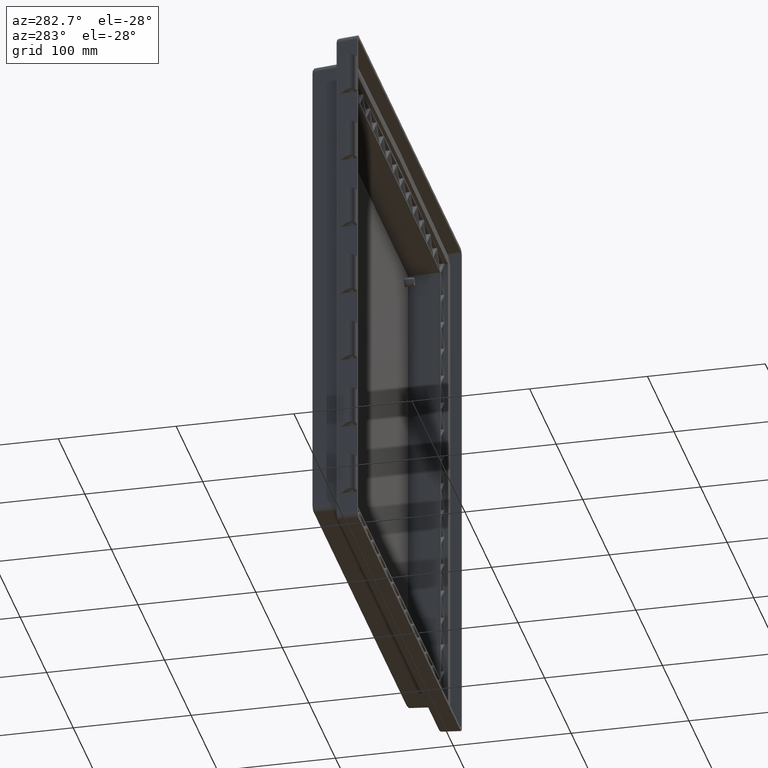
[diagram: clean part render]
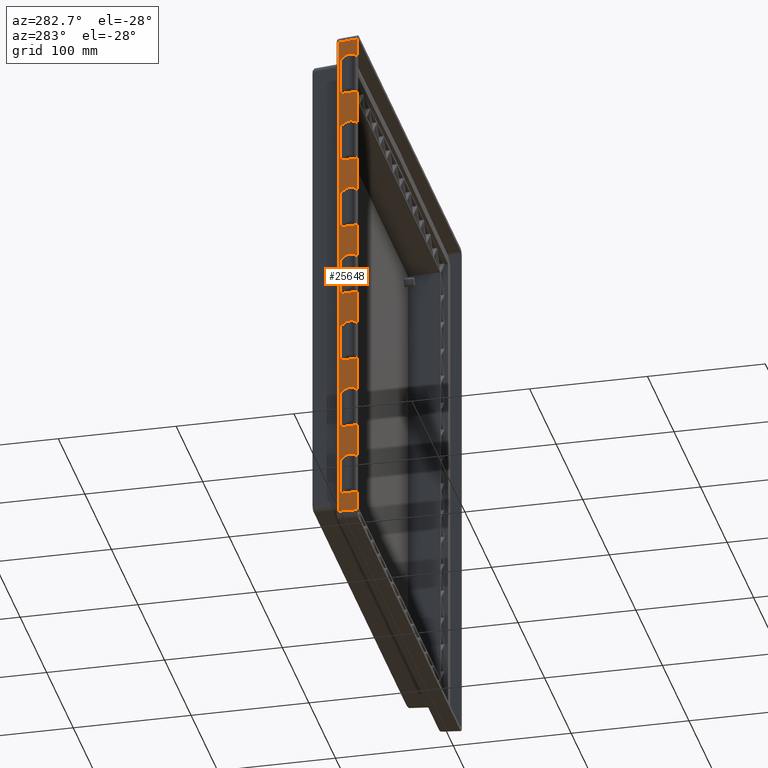
[diagram: same view with one face highlighted and labeled with its STEP entity id]
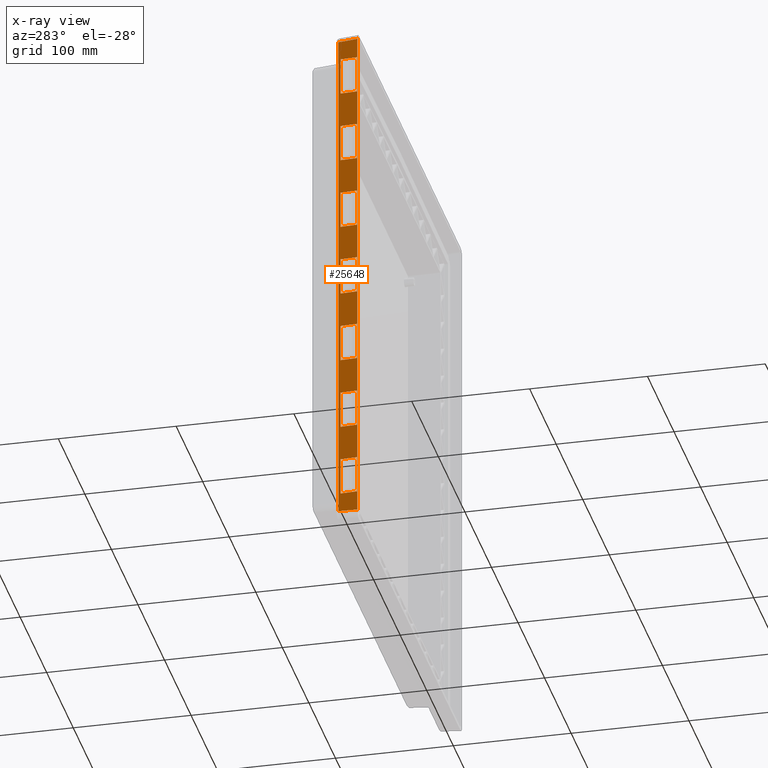
[diagram: x-ray of the same camera — body ghosted, the highlighted face saturated]
A machine part, auxiliary view. The second image highlights one B-rep face of the part: STEP entity #25648.
The next image is the same camera in x-ray: the body ghosted, the highlighted face saturated — about 0% of this face is hidden behind the body in this view.
In plain terms, the highlighted planar face has unit normal (-0.9986, 0.0523, 0).
Its self-contained STEP definition (entity closure, byte-faithful):
#2567 = CARTESIAN_POINT ( 'NONE',  ( -196.9040579168183700, -7.709884340566621800, -141.0000000000000000 ) ) ;
#3216 = CARTESIAN_POINT ( 'NONE',  ( -196.9040579168183700, -7.709884340566621800, -109.0000000000000100 ) ) ;
#8567 = DIRECTION ( 'NONE',  ( -0.0000000000000000000, -0.0000000000000000000, -1.000000000000000000 ) ) ;
#8568 = VECTOR ( 'NONE', #8567, 1000.000000000000000 ) ;
#8571 = CARTESIAN_POINT ( 'NONE',  ( -196.9040579168183700, -7.709884340566616400, -109.0000000000000100 ) ) ;
#8573 = LINE ( 'NONE', #8571, #8568 ) ;
#10353 = VERTEX_POINT ( 'NONE', #28763 ) ;
#10362 = EDGE_CURVE ( 'NONE', #17717, #10353, #28754, .T. ) ;
#11200 = CARTESIAN_POINT ( 'NONE',  ( -196.9040579168183700, -7.709884340566621800, -46.50000000000000000 ) ) ;
#11269 = CARTESIAN_POINT ( 'NONE',  ( -196.9040579168183700, -7.709884340566621800, -78.50000000000000000 ) ) ;
#11336 = DIRECTION ( 'NONE',  ( -0.0000000000000000000, -0.0000000000000000000, -1.000000000000000000 ) ) ;
#11337 = VECTOR ( 'NONE', #11336, 1000.000000000000000 ) ;
#11338 = CARTESIAN_POINT ( 'NONE',  ( -196.9040579168183700, -7.709884340566616400, -46.50000000000000000 ) ) ;
#11339 = LINE ( 'NONE', #11338, #11337 ) ;
#13537 = CARTESIAN_POINT ( 'NONE',  ( -196.5000000000001700, 0.0000000000000000000, 16.00000000000001400 ) ) ;
#13803 = DIRECTION ( 'NONE',  ( -0.05233595624294396000, -0.9986295347545739400, 0.0000000000000000000 ) ) ;
#13804 = VECTOR ( 'NONE', #13803, 1000.000000000000000 ) ;
#13814 = CARTESIAN_POINT ( 'NONE',  ( -196.1611324283967700, 6.465978452802646700, -16.00000000000000000 ) ) ;
#14388 = CARTESIAN_POINT ( 'NONE',  ( -196.1611324283967700, 6.465978452802646700, -203.5000000000000000 ) ) ;
#14395 = DIRECTION ( 'NONE',  ( -0.05233595624294396000, -0.9986295347545739400, 0.0000000000000000000 ) ) ;
#14396 = VECTOR ( 'NONE', #14395, 1000.000000000000000 ) ;
#14397 = CARTESIAN_POINT ( 'NONE',  ( -196.5000000000001700, 0.0000000000000000000, -171.5000000000000000 ) ) ;
#14398 = LINE ( 'NONE', #14397, #14396 ) ;
#14399 = DIRECTION ( 'NONE',  ( -0.05233595624294396000, -0.9986295347545739400, 0.0000000000000000000 ) ) ;
#14400 = VECTOR ( 'NONE', #14399, 1000.000000000000000 ) ;
#14401 = CARTESIAN_POINT ( 'NONE',  ( -196.5000000000001700, 0.0000000000000000000, -171.5000000000000000 ) ) ;
#14402 = LINE ( 'NONE', #14401, #14400 ) ;
#14403 = DIRECTION ( 'NONE',  ( -0.05233595624294396000, -0.9986295347545739400, 0.0000000000000000000 ) ) ;
#14404 = VECTOR ( 'NONE', #14403, 1000.000000000000000 ) ;
#14405 = CARTESIAN_POINT ( 'NONE',  ( -196.5000000000001700, 0.0000000000000000000, -203.5000000000000000 ) ) ;
#14410 = LINE ( 'NONE', #14405, #14404 ) ;
#14425 = CARTESIAN_POINT ( 'NONE',  ( -196.1611324283968000, 6.465978452802630700, -171.5000000000000000 ) ) ;
#14467 = CARTESIAN_POINT ( 'NONE',  ( -196.1611324283967700, 6.465978452802646700, -141.0000000000000000 ) ) ;
#14468 = DIRECTION ( 'NONE',  ( -0.0000000000000000000, -0.0000000000000000000, -1.000000000000000000 ) ) ;
#14469 = VECTOR ( 'NONE', #14468, 1000.000000000000000 ) ;
#14470 = CARTESIAN_POINT ( 'NONE',  ( -196.1611324283967700, 6.465978452802646700, -109.0000000000000100 ) ) ;
#14471 = LINE ( 'NONE', #14470, #14469 ) ;
#14484 = LINE ( 'NONE', #14544, #14543 ) ;
#14497 = DIRECTION ( 'NONE',  ( -0.05233595624294396000, -0.9986295347545739400, 0.0000000000000000000 ) ) ;
#14498 = VECTOR ( 'NONE', #14497, 1000.000000000000000 ) ;
#14499 = CARTESIAN_POINT ( 'NONE',  ( -196.5000000000001700, 0.0000000000000000000, -203.5000000000000000 ) ) ;
#14500 = LINE ( 'NONE', #14499, #14498 ) ;
#14505 = CARTESIAN_POINT ( 'NONE',  ( -196.1611324283968000, 6.465978452802630700, -108.9999999999999900 ) ) ;
#14506 = DIRECTION ( 'NONE',  ( -0.05233595624294396000, -0.9986295347545739400, 0.0000000000000000000 ) ) ;
#14507 = VECTOR ( 'NONE', #14506, 1000.000000000000000 ) ;
#14508 = CARTESIAN_POINT ( 'NONE',  ( -196.5000000000001700, 0.0000000000000000000, -108.9999999999999900 ) ) ;
#14509 = LINE ( 'NONE', #14508, #14507 ) ;
#14525 = DIRECTION ( 'NONE',  ( -0.05233595624294396000, -0.9986295347545739400, 0.0000000000000000000 ) ) ;
#14526 = VECTOR ( 'NONE', #14525, 1000.000000000000000 ) ;
#14527 = CARTESIAN_POINT ( 'NONE',  ( -196.5000000000001700, 0.0000000000000000000, -46.49999999999998600 ) ) ;
#14528 = LINE ( 'NONE', #14527, #14526 ) ;
#14533 = CARTESIAN_POINT ( 'NONE',  ( -196.1611324283968000, 6.465978452802630700, -46.49999999999998600 ) ) ;
#14534 = DIRECTION ( 'NONE',  ( -0.05233595624294396000, -0.9986295347545739400, 0.0000000000000000000 ) ) ;
#14535 = VECTOR ( 'NONE', #14534, 1000.000000000000000 ) ;
#14536 = CARTESIAN_POINT ( 'NONE',  ( -196.5000000000001700, 0.0000000000000000000, -46.49999999999998600 ) ) ;
#14537 = LINE ( 'NONE', #14536, #14535 ) ;
#14542 = DIRECTION ( 'NONE',  ( -0.0000000000000000000, -0.0000000000000000000, -1.000000000000000000 ) ) ;
#14543 = VECTOR ( 'NONE', #14542, 1000.000000000000000 ) ;
#14544 = CARTESIAN_POINT ( 'NONE',  ( -196.1611324283967700, 6.465978452802646700, -171.5000000000000000 ) ) ;
#14545 = DIRECTION ( 'NONE',  ( -0.05233595624294396000, -0.9986295347545739400, 0.0000000000000000000 ) ) ;
#14546 = VECTOR ( 'NONE', #14545, 1000.000000000000000 ) ;
#14547 = CARTESIAN_POINT ( 'NONE',  ( -196.5000000000001700, 0.0000000000000000000, -141.0000000000000000 ) ) ;
#14548 = LINE ( 'NONE', #14547, #14546 ) ;
#14549 = DIRECTION ( 'NONE',  ( -0.05233595624294396000, -0.9986295347545739400, 0.0000000000000000000 ) ) ;
#14550 = VECTOR ( 'NONE', #14549, 1000.000000000000000 ) ;
#14551 = CARTESIAN_POINT ( 'NONE',  ( -196.5000000000001700, 0.0000000000000000000, -141.0000000000000000 ) ) ;
#14555 = LINE ( 'NONE', #14551, #14550 ) ;
#14604 = DIRECTION ( 'NONE',  ( -0.05233595624294396000, -0.9986295347545739400, 0.0000000000000000000 ) ) ;
#14605 = VECTOR ( 'NONE', #14604, 1000.000000000000000 ) ;
#14606 = CARTESIAN_POINT ( 'NONE',  ( -196.5000000000001700, 0.0000000000000000000, -108.9999999999999900 ) ) ;
#14607 = LINE ( 'NONE', #14606, #14605 ) ;
#14620 = DIRECTION ( 'NONE',  ( -0.05233595624294396000, -0.9986295347545739400, 0.0000000000000000000 ) ) ;
#14621 = VECTOR ( 'NONE', #14620, 1000.000000000000000 ) ;
#14622 = CARTESIAN_POINT ( 'NONE',  ( -196.5000000000001700, 0.0000000000000000000, -78.50000000000001400 ) ) ;
#14623 = LINE ( 'NONE', #14622, #14621 ) ;
#14624 = DIRECTION ( 'NONE',  ( -0.05233595624294396000, -0.9986295347545739400, 0.0000000000000000000 ) ) ;
#14625 = VECTOR ( 'NONE', #14624, 1000.000000000000000 ) ;
#14626 = CARTESIAN_POINT ( 'NONE',  ( -196.5000000000001700, 0.0000000000000000000, -78.50000000000001400 ) ) ;
#14627 = LINE ( 'NONE', #14626, #14625 ) ;
#14628 = CARTESIAN_POINT ( 'NONE',  ( -196.1611324283968000, 6.465978452802630700, 15.99999999999998600 ) ) ;
#14639 = DIRECTION ( 'NONE',  ( -0.05233595624294396000, -0.9986295347545739400, 0.0000000000000000000 ) ) ;
#14640 = VECTOR ( 'NONE', #14639, 1000.000000000000000 ) ;
#14641 = CARTESIAN_POINT ( 'NONE',  ( -196.5000000000001700, 0.0000000000000000000, -16.00000000000001400 ) ) ;
#14642 = LINE ( 'NONE', #14641, #14640 ) ;
#14643 = DIRECTION ( 'NONE',  ( -0.05233595624294396000, -0.9986295347545739400, 0.0000000000000000000 ) ) ;
#14644 = VECTOR ( 'NONE', #14643, 1000.000000000000000 ) ;
#14645 = CARTESIAN_POINT ( 'NONE',  ( -196.5000000000001700, 0.0000000000000000000, 78.50000000000001400 ) ) ;
#14646 = LINE ( 'NONE', #14645, #14644 ) ;
#14651 = CARTESIAN_POINT ( 'NONE',  ( -196.1611324283968000, 6.465978452802630700, 78.49999999999998600 ) ) ;
#14652 = DIRECTION ( 'NONE',  ( -0.05233595624294396000, -0.9986295347545739400, 0.0000000000000000000 ) ) ;
#14653 = VECTOR ( 'NONE', #14652, 1000.000000000000000 ) ;
#14654 = CARTESIAN_POINT ( 'NONE',  ( -196.5000000000001700, 0.0000000000000000000, 78.50000000000001400 ) ) ;
#14658 = LINE ( 'NONE', #14654, #14653 ) ;
#14666 = CARTESIAN_POINT ( 'NONE',  ( -196.1611324283967700, 6.465978452802646700, -78.50000000000000000 ) ) ;
#14667 = DIRECTION ( 'NONE',  ( -0.0000000000000000000, -0.0000000000000000000, -1.000000000000000000 ) ) ;
#14668 = VECTOR ( 'NONE', #14667, 1000.000000000000000 ) ;
#14669 = CARTESIAN_POINT ( 'NONE',  ( -196.1611324283967700, 6.465978452802646700, -46.50000000000000000 ) ) ;
#14670 = LINE ( 'NONE', #14669, #14668 ) ;
#14671 = LINE ( 'NONE', #13537, #13804 ) ;
#14672 = DIRECTION ( 'NONE',  ( -0.05233595624294396000, -0.9986295347545739400, 0.0000000000000000000 ) ) ;
#14673 = VECTOR ( 'NONE', #14672, 1000.000000000000000 ) ;
#14674 = CARTESIAN_POINT ( 'NONE',  ( -196.5000000000001700, 0.0000000000000000000, -16.00000000000001400 ) ) ;
#14680 = LINE ( 'NONE', #14674, #14673 ) ;
#14682 = DIRECTION ( 'NONE',  ( -0.0000000000000000000, -0.0000000000000000000, -1.000000000000000000 ) ) ;
#14683 = VECTOR ( 'NONE', #14682, 1000.000000000000000 ) ;
#14684 = CARTESIAN_POINT ( 'NONE',  ( -196.1611324283967700, 6.465978452802646700, 16.00000000000000000 ) ) ;
#14685 = LINE ( 'NONE', #14684, #14683 ) ;
#14703 = LINE ( 'NONE', #14763, #14762 ) ;
#14729 = DIRECTION ( 'NONE',  ( -0.05233595624294396000, -0.9986295347545739400, 0.0000000000000000000 ) ) ;
#14730 = VECTOR ( 'NONE', #14729, 1000.000000000000000 ) ;
#14731 = CARTESIAN_POINT ( 'NONE',  ( -196.5000000000001700, 0.0000000000000000000, 16.00000000000001400 ) ) ;
#14732 = LINE ( 'NONE', #14731, #14730 ) ;
#14746 = CARTESIAN_POINT ( 'NONE',  ( -196.1611324283967700, 6.465978452802646700, 46.50000000000000000 ) ) ;
#14747 = DIRECTION ( 'NONE',  ( -0.0000000000000000000, -0.0000000000000000000, -1.000000000000000000 ) ) ;
#14748 = VECTOR ( 'NONE', #14747, 1000.000000000000000 ) ;
#14749 = CARTESIAN_POINT ( 'NONE',  ( -196.1611324283967700, 6.465978452802646700, 78.50000000000000000 ) ) ;
#14755 = LINE ( 'NONE', #14749, #14748 ) ;
#14757 = DIRECTION ( 'NONE',  ( -0.05233595624294396000, -0.9986295347545739400, 0.0000000000000000000 ) ) ;
#14758 = VECTOR ( 'NONE', #14757, 1000.000000000000000 ) ;
#14759 = CARTESIAN_POINT ( 'NONE',  ( -196.5000000000001700, 0.0000000000000000000, 46.49999999999998600 ) ) ;
#14760 = LINE ( 'NONE', #14759, #14758 ) ;
#14761 = DIRECTION ( 'NONE',  ( -0.05233595624294396000, -0.9986295347545739400, 0.0000000000000000000 ) ) ;
#14762 = VECTOR ( 'NONE', #14761, 1000.000000000000000 ) ;
#14763 = CARTESIAN_POINT ( 'NONE',  ( -196.5000000000001700, 0.0000000000000000000, 46.49999999999998600 ) ) ;
#14778 = DIRECTION ( 'NONE',  ( -0.05233595624294396000, -0.9986295347545739400, 0.0000000000000000000 ) ) ;
#14779 = VECTOR ( 'NONE', #14778, 1000.000000000000000 ) ;
#14780 = CARTESIAN_POINT ( 'NONE',  ( -196.5000000000001700, 0.0000000000000000000, 109.0000000000000000 ) ) ;
#14781 = LINE ( 'NONE', #14780, #14779 ) ;
#14786 = CARTESIAN_POINT ( 'NONE',  ( -196.1611324283968000, 6.465978452802630700, 203.5000000000000000 ) ) ;
#14787 = DIRECTION ( 'NONE',  ( -0.05233595624294396000, -0.9986295347545739400, 0.0000000000000000000 ) ) ;
#14788 = VECTOR ( 'NONE', #14787, 1000.000000000000000 ) ;
#14789 = CARTESIAN_POINT ( 'NONE',  ( -196.5000000000001700, 0.0000000000000000000, 203.5000000000000000 ) ) ;
#14793 = LINE ( 'NONE', #14789, #14788 ) ;
#14795 = DIRECTION ( 'NONE',  ( -0.05233595624294396000, -0.9986295347545739400, 0.0000000000000000000 ) ) ;
#14796 = VECTOR ( 'NONE', #14795, 1000.000000000000000 ) ;
#14797 = CARTESIAN_POINT ( 'NONE',  ( -196.5000000000001700, 0.0000000000000000000, 141.0000000000000000 ) ) ;
#14798 = LINE ( 'NONE', #14797, #14796 ) ;
#14803 = CARTESIAN_POINT ( 'NONE',  ( -196.1611324283968000, 6.465978452802630700, 141.0000000000000000 ) ) ;
#14804 = DIRECTION ( 'NONE',  ( -0.05233595624294396000, -0.9986295347545739400, 0.0000000000000000000 ) ) ;
#14805 = VECTOR ( 'NONE', #14804, 1000.000000000000000 ) ;
#14806 = CARTESIAN_POINT ( 'NONE',  ( -196.5000000000001700, 0.0000000000000000000, 141.0000000000000000 ) ) ;
#14807 = LINE ( 'NONE', #14806, #14805 ) ;
#14808 = DIRECTION ( 'NONE',  ( -0.05233595624294396000, -0.9986295347545739400, 0.0000000000000000000 ) ) ;
#14809 = VECTOR ( 'NONE', #14808, 1000.000000000000000 ) ;
#14810 = CARTESIAN_POINT ( 'NONE',  ( -196.5000000000001700, 0.0000000000000000000, 109.0000000000000000 ) ) ;
#14814 = LINE ( 'NONE', #14810, #14809 ) ;
#14822 = CARTESIAN_POINT ( 'NONE',  ( -196.1611324283967700, 6.465978452802646700, 109.0000000000000000 ) ) ;
#14823 = DIRECTION ( 'NONE',  ( -0.0000000000000000000, -0.0000000000000000000, -1.000000000000000000 ) ) ;
#14824 = VECTOR ( 'NONE', #14823, 1000.000000000000000 ) ;
#14825 = CARTESIAN_POINT ( 'NONE',  ( -196.1611324283967700, 6.465978452802646700, 141.0000000000000000 ) ) ;
#14826 = LINE ( 'NONE', #14825, #14824 ) ;
#14861 = CARTESIAN_POINT ( 'NONE',  ( -196.1611324283967700, 6.465978452802646700, 171.5000000000000000 ) ) ;
#14862 = DIRECTION ( 'NONE',  ( -0.0000000000000000000, -0.0000000000000000000, -1.000000000000000000 ) ) ;
#14863 = VECTOR ( 'NONE', #14862, 1000.000000000000000 ) ;
#14864 = CARTESIAN_POINT ( 'NONE',  ( -196.1611324283967700, 6.465978452802646700, 203.5000000000000000 ) ) ;
#14870 = LINE ( 'NONE', #14864, #14863 ) ;
#14872 = DIRECTION ( 'NONE',  ( -0.05233595624294396000, -0.9986295347545739400, 0.0000000000000000000 ) ) ;
#14873 = VECTOR ( 'NONE', #14872, 1000.000000000000000 ) ;
#14874 = CARTESIAN_POINT ( 'NONE',  ( -196.5000000000001700, 0.0000000000000000000, 203.5000000000000000 ) ) ;
#14875 = LINE ( 'NONE', #14874, #14873 ) ;
#14876 = DIRECTION ( 'NONE',  ( -0.05233595624294396000, -0.9986295347545739400, 0.0000000000000000000 ) ) ;
#14877 = VECTOR ( 'NONE', #14876, 1000.000000000000000 ) ;
#14878 = CARTESIAN_POINT ( 'NONE',  ( -196.5000000000001700, 0.0000000000000000000, 171.5000000000000000 ) ) ;
#14881 = LINE ( 'NONE', #14878, #14877 ) ;
#14991 = DIRECTION ( 'NONE',  ( -0.05233595624294396000, -0.9986295347545739400, 0.0000000000000000000 ) ) ;
#14992 = VECTOR ( 'NONE', #14991, 1000.000000000000000 ) ;
#14993 = CARTESIAN_POINT ( 'NONE',  ( -196.5000000000001700, 0.0000000000000000000, 171.5000000000000000 ) ) ;
#14994 = LINE ( 'NONE', #14993, #14992 ) ;
#15297 = CARTESIAN_POINT ( 'NONE',  ( -196.9192622342645200, -7.999999999999996400, 220.6767997931140400 ) ) ;
#15298 = DIRECTION ( 'NONE',  ( 0.05226442768871403200, 0.9972646886342372300, -0.05226442768871403200 ) ) ;
#15299 = VECTOR ( 'NONE', #15298, 1000.000000000000100 ) ;
#15300 = CARTESIAN_POINT ( 'NONE',  ( -196.5150030478364700, -0.2862752064970360800, 220.2725406066860500 ) ) ;
#15306 = LINE ( 'NONE', #15300, #15299 ) ;
#15307 = CARTESIAN_POINT ( 'NONE',  ( -196.0661132971653700, 8.279051483778982100, 219.8236508560149200 ) ) ;
#15577 = FACE_BOUND ( 'NONE', #25701, .T. ) ;
#15578 = FACE_BOUND ( 'NONE', #25630, .T. ) ;
#15579 = FACE_BOUND ( 'NONE', #25624, .T. ) ;
#15580 = FACE_BOUND ( 'NONE', #25639, .T. ) ;
#15586 = FACE_BOUND ( 'NONE', #25632, .T. ) ;
#15587 = FACE_OUTER_BOUND ( 'NONE', #25649, .T. ) ;
#15588 = CARTESIAN_POINT ( 'NONE',  ( -196.0661132971653400, 8.279051483778983900, -219.8236508560148900 ) ) ;
#15589 = DIRECTION ( 'NONE',  ( -0.05226442768871403200, -0.9972646886342372300, -0.05226442768871403200 ) ) ;
#15590 = VECTOR ( 'NONE', #15589, 1000.000000000000100 ) ;
#15591 = CARTESIAN_POINT ( 'NONE',  ( -195.2816990115010500, 23.24656768834581300, -219.0392365703506200 ) ) ;
#15592 = LINE ( 'NONE', #15591, #15590 ) ;
#15593 = CARTESIAN_POINT ( 'NONE',  ( -196.9192622342645200, -7.999999999999996400, -220.6767997931140400 ) ) ;
#15618 = DIRECTION ( 'NONE',  ( -0.0000000000000000000, -0.0000000000000000000, -1.000000000000000000 ) ) ;
#15619 = VECTOR ( 'NONE', #15618, 1000.000000000000000 ) ;
#15620 = CARTESIAN_POINT ( 'NONE',  ( -196.9192622342645200, -7.999999999999996400, 225.7499999999998900 ) ) ;
#15621 = LINE ( 'NONE', #15620, #15619 ) ;
#15622 = DIRECTION ( 'NONE',  ( -0.0000000000000000000, 0.0000000000000000000, -1.000000000000000000 ) ) ;
#15623 = VECTOR ( 'NONE', #15622, 1000.000000000000000 ) ;
#15624 = CARTESIAN_POINT ( 'NONE',  ( -196.0661132971653700, 8.279051483778985700, -219.7334597660193400 ) ) ;
#15625 = DIRECTION ( 'NONE',  ( -0.05233595624294396000, -0.9986295347545739400, 0.0000000000000000000 ) ) ;
#15626 = DIRECTION ( 'NONE',  ( -0.9986295347545739400, 0.05233595624294396000, 0.0000000000000000000 ) ) ;
#15627 = AXIS2_PLACEMENT_3D ( 'NONE', #15629, #15626, #15625 ) ;
#15628 = LINE ( 'NONE', #15624, #15623 ) ;
#15629 = CARTESIAN_POINT ( 'NONE',  ( -196.5000000000001700, 0.0000000000000000000, 225.7499999999998900 ) ) ;
#15630 = PLANE ( 'NONE',  #15627 ) ;
#15631 = FACE_BOUND ( 'NONE', #25692, .T. ) ;
#15632 = FACE_BOUND ( 'NONE', #25685, .T. ) ;
#17333 = VERTEX_POINT ( 'NONE', #28894 ) ;
#17351 = VERTEX_POINT ( 'NONE', #28929 ) ;
#17360 = VERTEX_POINT ( 'NONE', #28969 ) ;
#17392 = VERTEX_POINT ( 'NONE', #28980 ) ;
#17600 = VERTEX_POINT ( 'NONE', #29524 ) ;
#17622 = VERTEX_POINT ( 'NONE', #29538 ) ;
#17625 = VERTEX_POINT ( 'NONE', #29536 ) ;
#17717 = VERTEX_POINT ( 'NONE', #29672 ) ;
#17718 = VERTEX_POINT ( 'NONE', #29671 ) ;
#18392 = VERTEX_POINT ( 'NONE', #30744 ) ;
#18399 = VERTEX_POINT ( 'NONE', #30733 ) ;
#18404 = VERTEX_POINT ( 'NONE', #30785 ) ;
#18405 = VERTEX_POINT ( 'NONE', #30784 ) ;
#18407 = EDGE_CURVE ( 'NONE', #18405, #18399, #30783, .T. ) ;
#18471 = EDGE_CURVE ( 'NONE', #18392, #18404, #30873, .T. ) ;
#18997 = VERTEX_POINT ( 'NONE', #31874 ) ;
#19003 = VERTEX_POINT ( 'NONE', #31863 ) ;
#19005 = EDGE_CURVE ( 'NONE', #18997, #19003, #31862, .T. ) ;
#19012 = VERTEX_POINT ( 'NONE', #31896 ) ;
#19018 = VERTEX_POINT ( 'NONE', #31941 ) ;
#19020 = EDGE_CURVE ( 'NONE', #19012, #19018, #31940, .T. ) ;
#19344 = VERTEX_POINT ( 'NONE', #32519 ) ;
#19357 = VERTEX_POINT ( 'NONE', #32555 ) ;
#19366 = VERTEX_POINT ( 'NONE', #32540 ) ;
#19375 = VERTEX_POINT ( 'NONE', #32579 ) ;
#19408 = VERTEX_POINT ( 'NONE', #32636 ) ;
#19416 = VERTEX_POINT ( 'NONE', #32624 ) ;
#20404 = VERTEX_POINT ( 'NONE', #2567 ) ;
#20540 = VERTEX_POINT ( 'NONE', #3216 ) ;
#21906 = EDGE_CURVE ( 'NONE', #20540, #20404, #8573, .T. ) ;
#22595 = VERTEX_POINT ( 'NONE', #11200 ) ;
#22640 = VERTEX_POINT ( 'NONE', #11269 ) ;
#22686 = EDGE_CURVE ( 'NONE', #22595, #22640, #11339, .T. ) ;
#24673 = VERTEX_POINT ( 'NONE', #13814 ) ;
#25002 = EDGE_CURVE ( 'NONE', #25016, #17351, #14410, .T. ) ;
#25007 = EDGE_CURVE ( 'NONE', #17392, #17717, #14402, .T. ) ;
#25012 = EDGE_CURVE ( 'NONE', #25031, #17392, #14398, .T. ) ;
#25016 = VERTEX_POINT ( 'NONE', #14388 ) ;
#25031 = VERTEX_POINT ( 'NONE', #14425 ) ;
#25042 = EDGE_CURVE ( 'NONE', #25057, #25043, #14471, .T. ) ;
#25043 = VERTEX_POINT ( 'NONE', #14467 ) ;
#25056 = EDGE_CURVE ( 'NONE', #25057, #17600, #14509, .T. ) ;
#25057 = VERTEX_POINT ( 'NONE', #14505 ) ;
#25064 = EDGE_CURVE ( 'NONE', #17351, #10353, #14500, .T. ) ;
#25074 = EDGE_CURVE ( 'NONE', #25031, #25016, #14484, .T. ) ;
#25084 = EDGE_CURVE ( 'NONE', #25085, #17625, #14537, .T. ) ;
#25085 = VERTEX_POINT ( 'NONE', #14533 ) ;
#25091 = EDGE_CURVE ( 'NONE', #17625, #22595, #14528, .T. ) ;
#25112 = EDGE_CURVE ( 'NONE', #25043, #17360, #14555, .T. ) ;
#25117 = EDGE_CURVE ( 'NONE', #17360, #20404, #14548, .T. ) ;
#25121 = EDGE_CURVE ( 'NONE', #17600, #20540, #14607, .T. ) ;
#25139 = VERTEX_POINT ( 'NONE', #14628 ) ;
#25141 = EDGE_CURVE ( 'NONE', #25156, #17622, #14627, .T. ) ;
#25146 = EDGE_CURVE ( 'NONE', #17622, #22640, #14623, .T. ) ;
#25155 = EDGE_CURVE ( 'NONE', #25085, #25156, #14670, .T. ) ;
#25156 = VERTEX_POINT ( 'NONE', #14666 ) ;
#25164 = EDGE_CURVE ( 'NONE', #25165, #19357, #14658, .T. ) ;
#25165 = VERTEX_POINT ( 'NONE', #14651 ) ;
#25171 = EDGE_CURVE ( 'NONE', #19357, #18405, #14646, .T. ) ;
#25175 = EDGE_CURVE ( 'NONE', #19408, #18404, #14642, .T. ) ;
#25188 = EDGE_CURVE ( 'NONE', #25139, #24673, #14685, .T. ) ;
#25194 = EDGE_CURVE ( 'NONE', #24673, #19408, #14680, .T. ) ;
#25198 = EDGE_CURVE ( 'NONE', #19416, #18392, #14671, .T. ) ;
#25203 = EDGE_CURVE ( 'NONE', #25139, #19416, #14732, .T. ) ;
#25221 = EDGE_CURVE ( 'NONE', #25237, #19344, #14703, .T. ) ;
#25226 = EDGE_CURVE ( 'NONE', #19344, #18399, #14760, .T. ) ;
#25236 = EDGE_CURVE ( 'NONE', #25165, #25237, #14755, .T. ) ;
#25237 = VERTEX_POINT ( 'NONE', #14746 ) ;
#25245 = EDGE_CURVE ( 'NONE', #25246, #17333, #14793, .T. ) ;
#25246 = VERTEX_POINT ( 'NONE', #14786 ) ;
#25252 = EDGE_CURVE ( 'NONE', #19366, #19003, #14781, .T. ) ;
#25263 = EDGE_CURVE ( 'NONE', #25274, #25264, #14826, .T. ) ;
#25264 = VERTEX_POINT ( 'NONE', #14822 ) ;
#25272 = EDGE_CURVE ( 'NONE', #25264, #19366, #14814, .T. ) ;
#25273 = EDGE_CURVE ( 'NONE', #25274, #19375, #14807, .T. ) ;
#25274 = VERTEX_POINT ( 'NONE', #14803 ) ;
#25280 = EDGE_CURVE ( 'NONE', #19375, #18997, #14798, .T. ) ;
#25303 = EDGE_CURVE ( 'NONE', #25317, #17718, #14881, .T. ) ;
#25309 = EDGE_CURVE ( 'NONE', #17333, #19012, #14875, .T. ) ;
#25316 = EDGE_CURVE ( 'NONE', #25246, #25317, #14870, .T. ) ;
#25317 = VERTEX_POINT ( 'NONE', #14861 ) ;
#25364 = EDGE_CURVE ( 'NONE', #17718, #19018, #14994, .T. ) ;
#25499 = VERTEX_POINT ( 'NONE', #15307 ) ;
#25501 = EDGE_CURVE ( 'NONE', #25502, #25499, #15306, .T. ) ;
#25502 = VERTEX_POINT ( 'NONE', #15297 ) ;
#25624 = EDGE_LOOP ( 'NONE', ( #25625, #25626, #25627, #25628, #25629, #25694 ) ) ;
#25625 = ORIENTED_EDGE ( 'NONE', *, *, #25221, .F. ) ;
#25626 = ORIENTED_EDGE ( 'NONE', *, *, #25236, .F. ) ;
#25627 = ORIENTED_EDGE ( 'NONE', *, *, #25164, .T. ) ;
#25628 = ORIENTED_EDGE ( 'NONE', *, *, #25171, .T. ) ;
#25629 = ORIENTED_EDGE ( 'NONE', *, *, #18407, .T. ) ;
#25630 = EDGE_LOOP ( 'NONE', ( #25695, #25696, #25697, #25698, #25699, #25700 ) ) ;
#25631 = ORIENTED_EDGE ( 'NONE', *, *, #25501, .T. ) ;
#25632 = EDGE_LOOP ( 'NONE', ( #25633, #25634, #25635, #25636, #25637, #25638 ) ) ;
#25633 = ORIENTED_EDGE ( 'NONE', *, *, #25303, .F. ) ;
#25634 = ORIENTED_EDGE ( 'NONE', *, *, #25316, .F. ) ;
#25635 = ORIENTED_EDGE ( 'NONE', *, *, #25245, .T. ) ;
#25636 = ORIENTED_EDGE ( 'NONE', *, *, #25309, .T. ) ;
#25637 = ORIENTED_EDGE ( 'NONE', *, *, #19020, .T. ) ;
#25638 = ORIENTED_EDGE ( 'NONE', *, *, #25364, .F. ) ;
#25639 = EDGE_LOOP ( 'NONE', ( #25640, #25641, #25705, #25706, #25707, #25708 ) ) ;
#25640 = ORIENTED_EDGE ( 'NONE', *, *, #25272, .F. ) ;
#25641 = ORIENTED_EDGE ( 'NONE', *, *, #25263, .F. ) ;
#25642 = VERTEX_POINT ( 'NONE', #15593 ) ;
#25644 = EDGE_CURVE ( 'NONE', #25645, #25642, #15592, .T. ) ;
#25645 = VERTEX_POINT ( 'NONE', #15588 ) ;
#25648 = ADVANCED_FACE ( 'NONE', ( #15587, #15586, #15580, #15579, #15578, #15577, #15632, #15631 ), #15630, .T. ) ;
#25649 = EDGE_LOOP ( 'NONE', ( #25650, #25652, #25653, #25631 ) ) ;
#25650 = ORIENTED_EDGE ( 'NONE', *, *, #25651, .T. ) ;
#25651 = EDGE_CURVE ( 'NONE', #25499, #25645, #15628, .T. ) ;
#25652 = ORIENTED_EDGE ( 'NONE', *, *, #25644, .T. ) ;
#25653 = ORIENTED_EDGE ( 'NONE', *, *, #25654, .F. ) ;
#25654 = EDGE_CURVE ( 'NONE', #25502, #25642, #15621, .T. ) ;
#25670 = ORIENTED_EDGE ( 'NONE', *, *, #25002, .F. ) ;
#25671 = ORIENTED_EDGE ( 'NONE', *, *, #25074, .F. ) ;
#25672 = ORIENTED_EDGE ( 'NONE', *, *, #25012, .T. ) ;
#25673 = ORIENTED_EDGE ( 'NONE', *, *, #25007, .T. ) ;
#25674 = ORIENTED_EDGE ( 'NONE', *, *, #10362, .T. ) ;
#25675 = ORIENTED_EDGE ( 'NONE', *, *, #25064, .F. ) ;
#25682 = ORIENTED_EDGE ( 'NONE', *, *, #25091, .T. ) ;
#25683 = ORIENTED_EDGE ( 'NONE', *, *, #22686, .T. ) ;
#25684 = ORIENTED_EDGE ( 'NONE', *, *, #25146, .F. ) ;
#25685 = EDGE_LOOP ( 'NONE', ( #25686, #25687, #25688, #25689, #25690, #25691 ) ) ;
#25686 = ORIENTED_EDGE ( 'NONE', *, *, #25112, .F. ) ;
#25687 = ORIENTED_EDGE ( 'NONE', *, *, #25042, .F. ) ;
#25688 = ORIENTED_EDGE ( 'NONE', *, *, #25056, .T. ) ;
#25689 = ORIENTED_EDGE ( 'NONE', *, *, #25121, .T. ) ;
#25690 = ORIENTED_EDGE ( 'NONE', *, *, #21906, .T. ) ;
#25691 = ORIENTED_EDGE ( 'NONE', *, *, #25117, .F. ) ;
#25692 = EDGE_LOOP ( 'NONE', ( #25670, #25671, #25672, #25673, #25674, #25675 ) ) ;
#25694 = ORIENTED_EDGE ( 'NONE', *, *, #25226, .F. ) ;
#25695 = ORIENTED_EDGE ( 'NONE', *, *, #25194, .F. ) ;
#25696 = ORIENTED_EDGE ( 'NONE', *, *, #25188, .F. ) ;
#25697 = ORIENTED_EDGE ( 'NONE', *, *, #25203, .T. ) ;
#25698 = ORIENTED_EDGE ( 'NONE', *, *, #25198, .T. ) ;
#25699 = ORIENTED_EDGE ( 'NONE', *, *, #18471, .T. ) ;
#25700 = ORIENTED_EDGE ( 'NONE', *, *, #25175, .F. ) ;
#25701 = EDGE_LOOP ( 'NONE', ( #25702, #25703, #25704, #25682, #25683, #25684 ) ) ;
#25702 = ORIENTED_EDGE ( 'NONE', *, *, #25141, .F. ) ;
#25703 = ORIENTED_EDGE ( 'NONE', *, *, #25155, .F. ) ;
#25704 = ORIENTED_EDGE ( 'NONE', *, *, #25084, .T. ) ;
#25705 = ORIENTED_EDGE ( 'NONE', *, *, #25273, .T. ) ;
#25706 = ORIENTED_EDGE ( 'NONE', *, *, #25280, .T. ) ;
#25707 = ORIENTED_EDGE ( 'NONE', *, *, #19005, .T. ) ;
#25708 = ORIENTED_EDGE ( 'NONE', *, *, #25252, .F. ) ;
#28752 = CARTESIAN_POINT ( 'NONE',  ( -196.9040579168183700, -7.709884340566616400, -171.5000000000000000 ) ) ;
#28754 = LINE ( 'NONE', #28752, #28815 ) ;
#28763 = CARTESIAN_POINT ( 'NONE',  ( -196.9040579168183700, -7.709884340566621800, -203.5000000000000000 ) ) ;
#28814 = DIRECTION ( 'NONE',  ( -0.0000000000000000000, -0.0000000000000000000, -1.000000000000000000 ) ) ;
#28815 = VECTOR ( 'NONE', #28814, 1000.000000000000000 ) ;
#28894 = CARTESIAN_POINT ( 'NONE',  ( -196.6676754571399500, -3.199438316861609200, 203.5000000000000000 ) ) ;
#28929 = CARTESIAN_POINT ( 'NONE',  ( -196.6676754571399500, -3.199438316861609200, -203.5000000000000000 ) ) ;
#28969 = CARTESIAN_POINT ( 'NONE',  ( -196.6676754571399500, -3.199438316861609200, -141.0000000000000000 ) ) ;
#28980 = CARTESIAN_POINT ( 'NONE',  ( -196.6676754571399500, -3.199438316861609200, -171.5000000000000000 ) ) ;
#29524 = CARTESIAN_POINT ( 'NONE',  ( -196.6676754571399500, -3.199438316861609200, -109.0000000000000100 ) ) ;
#29536 = CARTESIAN_POINT ( 'NONE',  ( -196.6676754571399500, -3.199438316861609200, -46.50000000000000000 ) ) ;
#29538 = CARTESIAN_POINT ( 'NONE',  ( -196.6676754571399500, -3.199438316861609200, -78.50000000000000000 ) ) ;
#29671 = CARTESIAN_POINT ( 'NONE',  ( -196.6676754571399500, -3.199438316861609200, 171.5000000000000000 ) ) ;
#29672 = CARTESIAN_POINT ( 'NONE',  ( -196.9040579168183700, -7.709884340566621800, -171.5000000000000000 ) ) ;
#30733 = CARTESIAN_POINT ( 'NONE',  ( -196.9040579168183700, -7.709884340566621800, 46.50000000000000000 ) ) ;
#30744 = CARTESIAN_POINT ( 'NONE',  ( -196.9040579168183700, -7.709884340566621800, 16.00000000000000000 ) ) ;
#30780 = DIRECTION ( 'NONE',  ( -0.0000000000000000000, -0.0000000000000000000, -1.000000000000000000 ) ) ;
#30781 = VECTOR ( 'NONE', #30780, 1000.000000000000000 ) ;
#30782 = CARTESIAN_POINT ( 'NONE',  ( -196.9040579168183700, -7.709884340566616400, 78.50000000000000000 ) ) ;
#30783 = LINE ( 'NONE', #30782, #30781 ) ;
#30784 = CARTESIAN_POINT ( 'NONE',  ( -196.9040579168183700, -7.709884340566621800, 78.50000000000000000 ) ) ;
#30785 = CARTESIAN_POINT ( 'NONE',  ( -196.9040579168183700, -7.709884340566621800, -16.00000000000000000 ) ) ;
#30870 = DIRECTION ( 'NONE',  ( -0.0000000000000000000, -0.0000000000000000000, -1.000000000000000000 ) ) ;
#30871 = VECTOR ( 'NONE', #30870, 1000.000000000000000 ) ;
#30872 = CARTESIAN_POINT ( 'NONE',  ( -196.9040579168183700, -7.709884340566616400, 16.00000000000000000 ) ) ;
#30873 = LINE ( 'NONE', #30872, #30871 ) ;
#31859 = DIRECTION ( 'NONE',  ( -0.0000000000000000000, -0.0000000000000000000, -1.000000000000000000 ) ) ;
#31860 = VECTOR ( 'NONE', #31859, 1000.000000000000000 ) ;
#31861 = CARTESIAN_POINT ( 'NONE',  ( -196.9040579168183700, -7.709884340566616400, 141.0000000000000000 ) ) ;
#31862 = LINE ( 'NONE', #31861, #31860 ) ;
#31863 = CARTESIAN_POINT ( 'NONE',  ( -196.9040579168183700, -7.709884340566621800, 109.0000000000000000 ) ) ;
#31874 = CARTESIAN_POINT ( 'NONE',  ( -196.9040579168183700, -7.709884340566621800, 141.0000000000000000 ) ) ;
#31896 = CARTESIAN_POINT ( 'NONE',  ( -196.9040579168183700, -7.709884340566621800, 203.5000000000000000 ) ) ;
#31937 = DIRECTION ( 'NONE',  ( -0.0000000000000000000, -0.0000000000000000000, -1.000000000000000000 ) ) ;
#31938 = VECTOR ( 'NONE', #31937, 1000.000000000000000 ) ;
#31939 = CARTESIAN_POINT ( 'NONE',  ( -196.9040579168183700, -7.709884340566616400, 203.5000000000000000 ) ) ;
#31940 = LINE ( 'NONE', #31939, #31938 ) ;
#31941 = CARTESIAN_POINT ( 'NONE',  ( -196.9040579168183700, -7.709884340566621800, 171.5000000000000000 ) ) ;
#32519 = CARTESIAN_POINT ( 'NONE',  ( -196.6676754571399500, -3.199438316861609200, 46.50000000000000000 ) ) ;
#32540 = CARTESIAN_POINT ( 'NONE',  ( -196.6676754571399500, -3.199438316861609200, 109.0000000000000000 ) ) ;
#32555 = CARTESIAN_POINT ( 'NONE',  ( -196.6676754571399500, -3.199438316861609200, 78.50000000000000000 ) ) ;
#32579 = CARTESIAN_POINT ( 'NONE',  ( -196.6676754571399500, -3.199438316861609200, 141.0000000000000000 ) ) ;
#32624 = CARTESIAN_POINT ( 'NONE',  ( -196.6676754571399500, -3.199438316861609200, 16.00000000000000000 ) ) ;
#32636 = CARTESIAN_POINT ( 'NONE',  ( -196.6676754571399500, -3.199438316861609200, -16.00000000000000000 ) ) ;